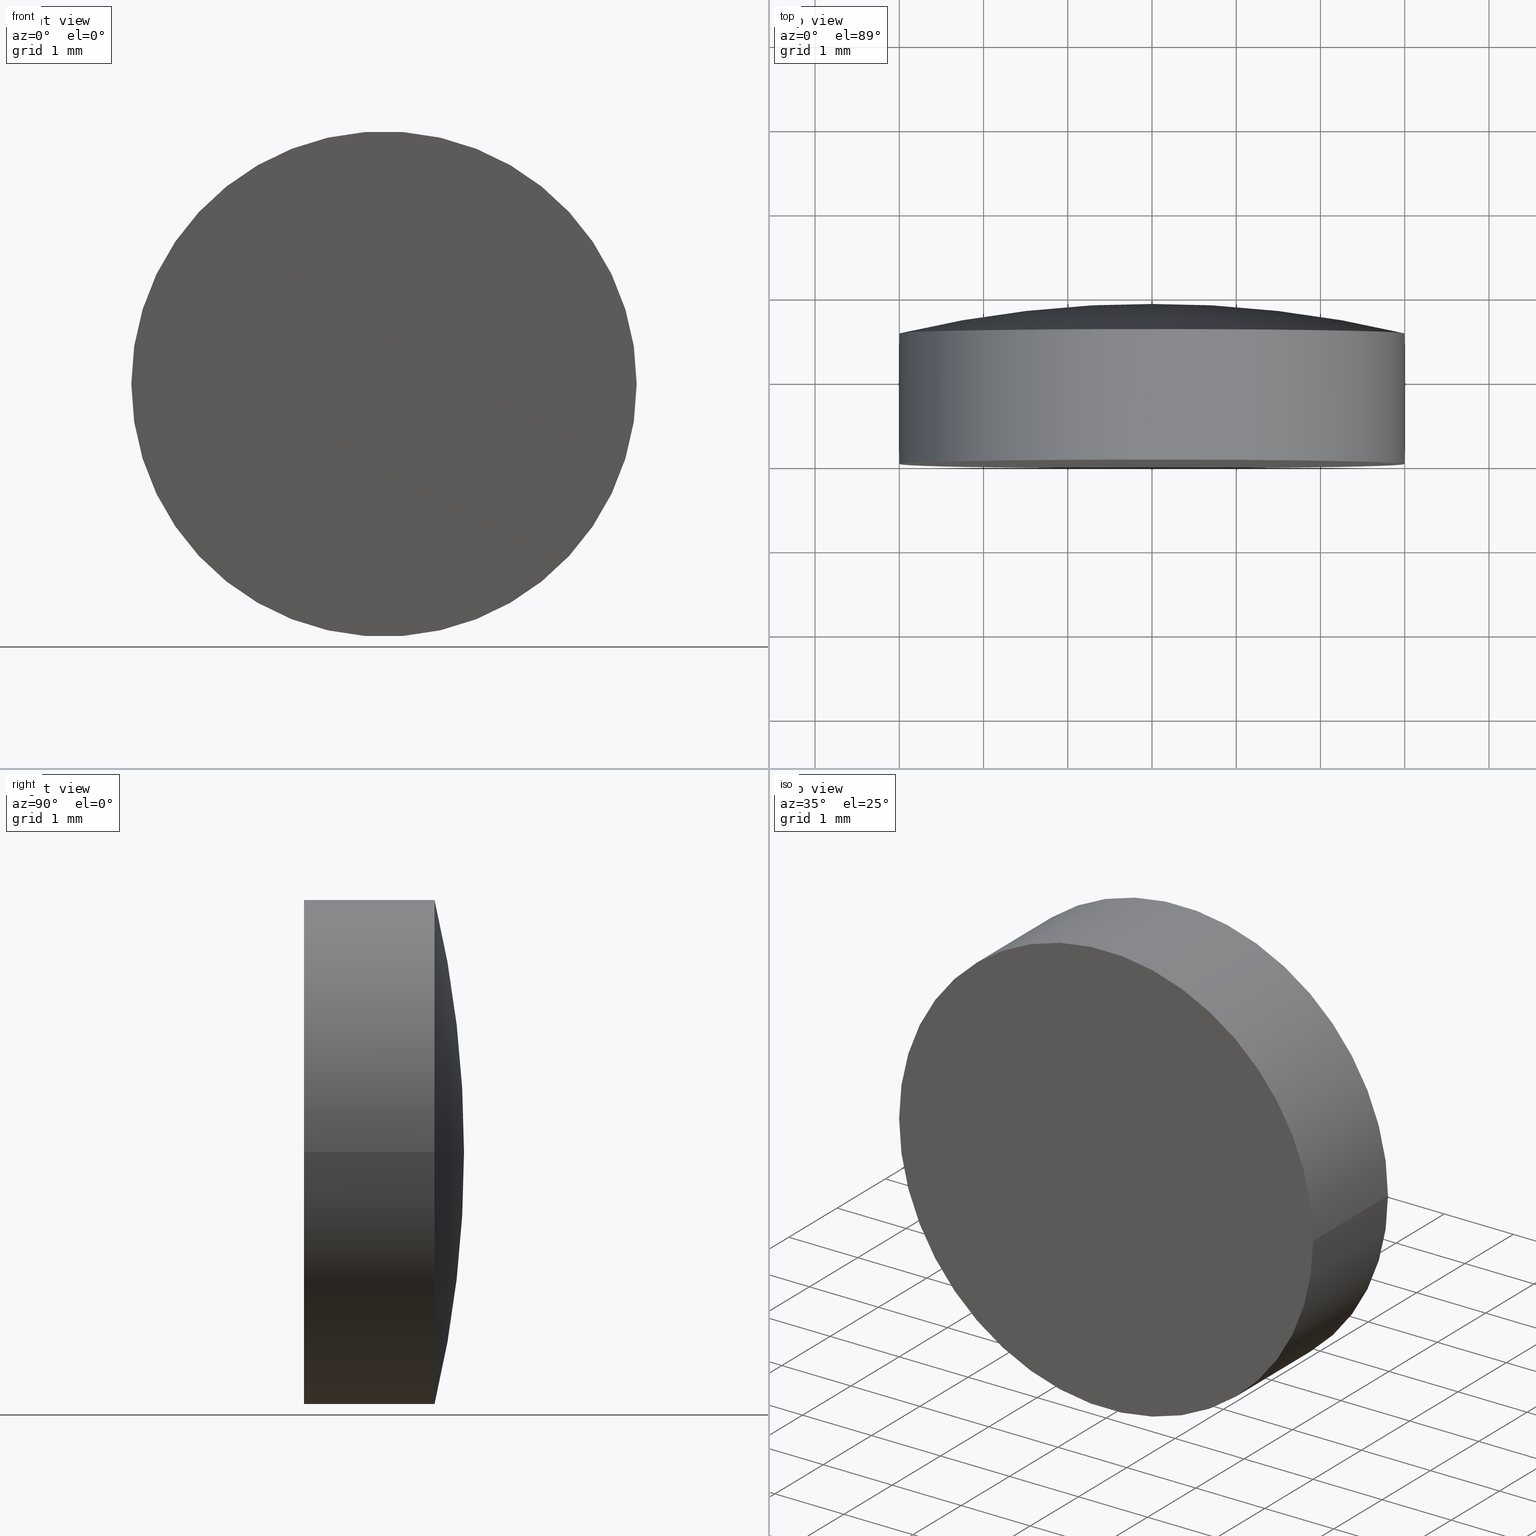
[diagram: canonical four-view strip — front | top / right | iso, engineering-drawing reading convention]
A machine part, canonical four-view strip (front | top / right | iso — engineering-drawing reading convention). The complete STEP part file that produces these views, byte-faithful:
ISO-10303-21;
HEADER;
FILE_DESCRIPTION (( 'STEP AP203' ),
    '1' );
FILE_NAME ('100564.STEP',
    '2024-05-09T06:10:14',
    ( '' ),
    ( '' ),
    'SwSTEP 2.0',
    'SolidWorks 2020',
    '' );
FILE_SCHEMA (( 'CONFIG_CONTROL_DESIGN' ));
ENDSEC;

DATA;
#1 = DIRECTION ( 'NONE',  ( -1.000000000000000000, 0.000000000000000000, 0.000000000000000000 ) ) ;
#2 = CARTESIAN_POINT ( 'NONE',  ( 1.224646799147351420E-17, 1.899999999999999911, 0.000000000000000000 ) ) ;
#3 = APPROVAL_PERSON_ORGANIZATION ( #56, #83, #115 ) ;
#4 = DIRECTION ( 'NONE',  ( -1.000000000000000000, 6.445509469196585650E-18, 0.000000000000000000 ) ) ;
#5 = CARTESIAN_POINT ( 'NONE',  ( 0.01425091764846829478, -11.00999213444168134, 1.745234068310931039E-18 ) ) ;
#6 = APPROVAL_ROLE ( '' ) ;
#7 = PERSON_AND_ORGANIZATION ( #136, #63 ) ;
#8 = PERSON_AND_ORGANIZATION_ROLE ( 'classification_officer' ) ;
#9 = CC_DESIGN_PERSON_AND_ORGANIZATION_ASSIGNMENT ( #97, #194, ( #49 ) ) ;
#10 = TOROIDAL_SURFACE ( 'NONE', #166, 0.01425091764846836591, 12.90999999999999837 ) ;
#11 = ORIENTED_EDGE ( 'NONE', *, *, #196, .T. ) ;
#12 = CALENDAR_DATE ( 2024, 9, 5 ) ;
#13 = DIRECTION ( 'NONE',  ( 6.445509469196587961E-18, 1.000000000000000000, -0.000000000000000000 ) ) ;
#14 = FACE_OUTER_BOUND ( 'NONE', #189, .T. ) ;
#15 = DATE_AND_TIME ( #129, #173 ) ;
#16 =( LENGTH_UNIT ( ) NAMED_UNIT ( * ) SI_UNIT ( .MILLI., .METRE. ) );
#17 = FACE_OUTER_BOUND ( 'NONE', #192, .T. ) ;
#18 = CC_DESIGN_PERSON_AND_ORGANIZATION_ASSIGNMENT ( #39, #55, ( #174 ) ) ;
#19 = AXIS2_PLACEMENT_3D ( 'NONE', #75, #120, #42 ) ;
#20 = CIRCLE ( 'NONE', #179, 12.90999999999999837 ) ;
#21 = ORIENTED_EDGE ( 'NONE', *, *, #196, .F. ) ;
#22 = EDGE_CURVE ( 'NONE', #118, #131, #201, .T. ) ;
#23 = CIRCLE ( 'NONE', #41, 3.000000000000000000 ) ;
#24 = SECURITY_CLASSIFICATION_LEVEL ( 'unclassified' ) ;
#25 = VECTOR ( 'NONE', #60, 1000.000000000000000 ) ;
#26 = DATE_TIME_ROLE ( 'creation_date' ) ;
#27 = DIRECTION ( 'NONE',  ( 6.445509469196587961E-18, 1.000000000000000000, -0.000000000000000000 ) ) ;
#28 = CC_DESIGN_DATE_AND_TIME_ASSIGNMENT ( #84, #135, ( #191 ) ) ;
#29 = CC_DESIGN_PERSON_AND_ORGANIZATION_ASSIGNMENT ( #37, #154, ( #59 ) ) ;
#30 = CARTESIAN_POINT ( 'NONE',  ( 3.000000000000000000, -4.530173974017915390E-16, 3.673940397442059868E-16 ) ) ;
#31 = DIRECTION ( 'NONE',  ( -1.000000000000000000, 6.445509469196585650E-18, 0.000000000000000000 ) ) ;
#32 = CIRCLE ( 'NONE', #138, 3.000000000000000000 ) ;
#33 = ORIENTED_EDGE ( 'NONE', *, *, #22, .T. ) ;
#34 = EDGE_CURVE ( 'NONE', #131, #38, #20, .T. ) ;
#35 = COORDINATED_UNIVERSAL_TIME_OFFSET ( 8, 0, .AHEAD. ) ;
#36 = CC_DESIGN_SECURITY_CLASSIFICATION ( #191, ( #174 ) ) ;
#37 = PERSON_AND_ORGANIZATION ( #136, #63 ) ;
#38 = VERTEX_POINT ( 'NONE', #2 ) ;
#39 = PERSON_AND_ORGANIZATION ( #136, #63 ) ;
#40 = EDGE_LOOP ( 'NONE', ( #107, #46, #142, #164 ) ) ;
#41 = AXIS2_PLACEMENT_3D ( 'NONE', #62, #171, #4 ) ;
#42 = DIRECTION ( 'NONE',  ( -1.000000000000000000, 0.000000000000000000, 0.000000000000000000 ) ) ;
#43 = ORIENTED_EDGE ( 'NONE', *, *, #72, .T. ) ;
#44 = AXIS2_PLACEMENT_3D ( 'NONE', #77, #141, #183 ) ;
#45 = CARTESIAN_POINT ( 'NONE',  ( -6.018531076210112041E-33, -4.336808689942017736E-16, 0.000000000000000000 ) ) ;
#46 = ORIENTED_EDGE ( 'NONE', *, *, #104, .T. ) ;
#47 = APPLICATION_PROTOCOL_DEFINITION ( 'international standard', 'config_control_design', 1994, #90 ) ;
#48 = ORIENTED_EDGE ( 'NONE', *, *, #104, .F. ) ;
#49 = PRODUCT_DEFINITION ( 'δ֪', '', #174, #126 ) ;
#50 = DATE_AND_TIME ( #176, #162 ) ;
#51 = ORIENTED_EDGE ( 'NONE', *, *, #188, .F. ) ;
#52 = CC_DESIGN_APPROVAL ( #83, ( #174 ) ) ;
#53 = APPROVAL_STATUS ( 'not_yet_approved' ) ;
#54 =( GEOMETRIC_REPRESENTATION_CONTEXT ( 3 ) GLOBAL_UNCERTAINTY_ASSIGNED_CONTEXT ( ( #152 ) ) GLOBAL_UNIT_ASSIGNED_CONTEXT ( ( #16, #110, #80 ) ) REPRESENTATION_CONTEXT ( 'NONE', 'WORKASPACE' ) );
#55 = PERSON_AND_ORGANIZATION_ROLE ( 'creator' ) ;
#56 = PERSON_AND_ORGANIZATION ( #136, #63 ) ;
#57 = ADVANCED_FACE ( 'NONE', ( #78 ), #10, .T. ) ;
#58 = AXIS2_PLACEMENT_3D ( 'NONE', #101, #159, #170 ) ;
#59 = PRODUCT ( '100564', '100564', '', ( #134 ) ) ;
#60 = DIRECTION ( 'NONE',  ( 6.445509469196587961E-18, 1.000000000000000000, -0.000000000000000000 ) ) ;
#61 = ORIENTED_EDGE ( 'NONE', *, *, #34, .F. ) ;
#62 = CARTESIAN_POINT ( 'NONE',  ( -6.018531076210112041E-33, -4.336808689942017736E-16, 0.000000000000000000 ) ) ;
#63 = ORGANIZATION ( 'δָ��', 'δָ��', '' ) ;
#64 = FACE_OUTER_BOUND ( 'NONE', #186, .T. ) ;
#65 = DIRECTION ( 'NONE',  ( -1.224646799147353207E-16, 7.893472540325556544E-34, 1.000000000000000000 ) ) ;
#66 = ADVANCED_FACE ( 'NONE', ( #181 ), #158, .T. ) ;
#67 = APPLICATION_CONTEXT ( 'configuration controlled 3d designs of mechanical parts and assemblies' ) ;
#68 = PERSON_AND_ORGANIZATION ( #136, #63 ) ;
#69 = APPROVAL_STATUS ( 'not_yet_approved' ) ;
#70 = CALENDAR_DATE ( 2024, 9, 5 ) ;
#71 = CC_DESIGN_APPROVAL ( #147, ( #49 ) ) ;
#72 = EDGE_CURVE ( 'NONE', #108, #131, #79, .T. ) ;
#73 = CARTESIAN_POINT ( 'NONE',  ( 0.000000000000000000, 0.000000000000000000, 0.000000000000000000 ) ) ;
#74 = DATE_AND_TIME ( #98, #184 ) ;
#75 = CARTESIAN_POINT ( 'NONE',  ( 9.990539677254705870E-18, 1.549999999999999600, 0.000000000000000000 ) ) ;
#76 = CIRCLE ( 'NONE', #58, 12.90999999999999837 ) ;
#77 = CARTESIAN_POINT ( 'NONE',  ( -1.246337769525088082E-33, -1.933652840758978761E-16, 0.000000000000000000 ) ) ;
#78 = FACE_OUTER_BOUND ( 'NONE', #193, .T. ) ;
#79 = CIRCLE ( 'NONE', #19, 3.000000000000000000 ) ;
#80 =( NAMED_UNIT ( * ) SI_UNIT ( $, .STERADIAN. ) SOLID_ANGLE_UNIT ( ) );
#81 = APPROVAL_DATE_TIME ( #132, #147 ) ;
#82 = ADVANCED_FACE ( 'NONE', ( #17 ), #121, .T. ) ;
#83 = APPROVAL ( #53, 'δָ��' ) ;
#84 = DATE_AND_TIME ( #70, #95 ) ;
#85 = CARTESIAN_POINT ( 'NONE',  ( -7.115076756936122848E-17, -11.00999213444168134, 0.000000000000000000 ) ) ;
#86 = CARTESIAN_POINT ( 'NONE',  ( -7.115076756936122848E-17, -11.00999213444168134, 0.000000000000000000 ) ) ;
#87 = DIRECTION ( 'NONE',  ( -1.000000000000000000, 0.000000000000000000, 0.000000000000000000 ) ) ;
#88 = CARTESIAN_POINT ( 'NONE',  ( -3.000000000000000000, -4.143443405866120082E-16, 0.000000000000000000 ) ) ;
#89 = VECTOR ( 'NONE', #156, 1000.000000000000000 ) ;
#90 = APPLICATION_CONTEXT ( 'configuration controlled 3d designs of mechanical parts and assemblies' ) ;
#91 = APPROVAL_PERSON_ORGANIZATION ( #199, #167, #6 ) ;
#92 = CLOSED_SHELL ( 'NONE', ( #127, #57, #82, #177, #66 ) ) ;
#93 = VERTEX_POINT ( 'NONE', #88 ) ;
#94 = ADVANCED_BREP_SHAPE_REPRESENTATION ( '100564', ( #137, #195 ), #54 ) ;
#95 = LOCAL_TIME ( 14, 10, 14.00000000000000000, #112 ) ;
#96 = COORDINATED_UNIVERSAL_TIME_OFFSET ( 8, 0, .AHEAD. ) ;
#97 = PERSON_AND_ORGANIZATION ( #136, #63 ) ;
#98 = CALENDAR_DATE ( 2024, 9, 5 ) ;
#99 = PERSON_AND_ORGANIZATION_ROLE ( 'design_supplier' ) ;
#100 = CARTESIAN_POINT ( 'NONE',  ( -3.000000000000004441, 1.549999999999999378, 0.000000000000000000 ) ) ;
#101 = CARTESIAN_POINT ( 'NONE',  ( -0.01425091764846843703, -11.00999213444168134, 0.000000000000000000 ) ) ;
#102 = LOCAL_TIME ( 14, 10, 14.00000000000000000, #198 ) ;
#103 = CARTESIAN_POINT ( 'NONE',  ( 9.990539677254705870E-18, 1.549999999999999600, 0.000000000000000000 ) ) ;
#104 = EDGE_CURVE ( 'NONE', #118, #93, #23, .T. ) ;
#105 = DIRECTION ( 'NONE',  ( -1.000000000000000000, 6.445509469196587191E-18, 0.000000000000000000 ) ) ;
#106 = CC_DESIGN_PERSON_AND_ORGANIZATION_ASSIGNMENT ( #114, #8, ( #191 ) ) ;
#107 = ORIENTED_EDGE ( 'NONE', *, *, #22, .F. ) ;
#108 = VERTEX_POINT ( 'NONE', #100 ) ;
#109 = AXIS2_PLACEMENT_3D ( 'NONE', #190, #117, #187 ) ;
#110 =( NAMED_UNIT ( * ) PLANE_ANGLE_UNIT ( ) SI_UNIT ( $, .RADIAN. ) );
#111 = ORIENTED_EDGE ( 'NONE', *, *, #34, .T. ) ;
#112 = COORDINATED_UNIVERSAL_TIME_OFFSET ( 8, 0, .AHEAD. ) ;
#113 = ORIENTED_EDGE ( 'NONE', *, *, #119, .F. ) ;
#114 = PERSON_AND_ORGANIZATION ( #136, #63 ) ;
#115 = APPROVAL_ROLE ( '' ) ;
#116 = PRODUCT_DEFINITION_SHAPE ( 'NONE', 'NONE',  #49 ) ;
#117 = DIRECTION ( 'NONE',  ( 6.445509469196587961E-18, 1.000000000000000000, -0.000000000000000000 ) ) ;
#118 = VERTEX_POINT ( 'NONE', #30 ) ;
#119 = EDGE_CURVE ( 'NONE', #93, #108, #161, .T. ) ;
#120 = DIRECTION ( 'NONE',  ( 6.445509469196587961E-18, 1.000000000000000000, -0.000000000000000000 ) ) ;
#121 = TOROIDAL_SURFACE ( 'NONE', #128, 0.01425091764846836591, 12.90999999999999837 ) ;
#122 = CYLINDRICAL_SURFACE ( 'NONE', #149, 3.000000000000000000 ) ;
#123 = DIRECTION ( 'NONE',  ( -1.000000000000000000, 6.445509469196587191E-18, 0.000000000000000000 ) ) ;
#124 = CC_DESIGN_APPROVAL ( #167, ( #191 ) ) ;
#125 = ORIENTED_EDGE ( 'NONE', *, *, #155, .T. ) ;
#126 = DESIGN_CONTEXT ( 'detailed design', #67, 'design' ) ;
#127 = ADVANCED_FACE ( 'NONE', ( #64 ), #122, .T. ) ;
#128 = AXIS2_PLACEMENT_3D ( 'NONE', #85, #144, #105 ) ;
#129 = CALENDAR_DATE ( 2024, 9, 5 ) ;
#130 = PRODUCT_RELATED_PRODUCT_CATEGORY ( 'detail', '', ( #59 ) ) ;
#131 = VERTEX_POINT ( 'NONE', #168 ) ;
#132 = DATE_AND_TIME ( #12, #102 ) ;
#133 = DIRECTION ( 'NONE',  ( 1.000000000000000000, 0.000000000000000000, 0.000000000000000000 ) ) ;
#134 = MECHANICAL_CONTEXT ( 'NONE', #90, 'mechanical' ) ;
#135 = DATE_TIME_ROLE ( 'classification_date' ) ;
#136 = PERSON ( 'δָ��', 'δָ��', 'δָ��', ('δָ��'), ('δָ��'), ('δָ��') ) ;
#137 = MANIFOLD_SOLID_BREP ( '��ת2', #92 ) ;
#138 = AXIS2_PLACEMENT_3D ( 'NONE', #103, #27, #87 ) ;
#139 = CARTESIAN_POINT ( 'NONE',  ( 1.224646799147351420E-17, 1.899999999999999911, 0.000000000000000000 ) ) ;
#140 = APPROVAL_DATE_TIME ( #15, #167 ) ;
#141 = DIRECTION ( 'NONE',  ( -6.445509469196587961E-18, -1.000000000000000000, 0.000000000000000000 ) ) ;
#142 = ORIENTED_EDGE ( 'NONE', *, *, #119, .T. ) ;
#143 = DIRECTION ( 'NONE',  ( 1.000000000000000000, 0.000000000000000000, 1.224646799147353207E-16 ) ) ;
#144 = DIRECTION ( 'NONE',  ( 6.445509469196587961E-18, 1.000000000000000000, -0.000000000000000000 ) ) ;
#145 = ORIENTED_EDGE ( 'NONE', *, *, #72, .F. ) ;
#146 = CIRCLE ( 'NONE', #163, 3.000000000000000000 ) ;
#147 = APPROVAL ( #69, 'δָ��' ) ;
#148 = CC_DESIGN_PERSON_AND_ORGANIZATION_ASSIGNMENT ( #68, #99, ( #174 ) ) ;
#149 = AXIS2_PLACEMENT_3D ( 'NONE', #139, #200, #1 ) ;
#150 = COORDINATED_UNIVERSAL_TIME_OFFSET ( 8, 0, .AHEAD. ) ;
#151 = APPLICATION_PROTOCOL_DEFINITION ( 'international standard', 'config_control_design', 1994, #67 ) ;
#152 = UNCERTAINTY_MEASURE_WITH_UNIT (LENGTH_MEASURE( 1.000000000000000082E-05 ), #16, 'distance_accuracy_value', 'NONE');
#153 = APPROVAL_ROLE ( '' ) ;
#154 = PERSON_AND_ORGANIZATION_ROLE ( 'design_owner' ) ;
#155 = EDGE_CURVE ( 'NONE', #131, #108, #32, .T. ) ;
#156 = DIRECTION ( 'NONE',  ( 6.445509469196587961E-18, 1.000000000000000000, -0.000000000000000000 ) ) ;
#157 = PLANE ( 'NONE',  #44 ) ;
#158 = CYLINDRICAL_SURFACE ( 'NONE', #109, 3.000000000000000000 ) ;
#159 = DIRECTION ( 'NONE',  ( -0.000000000000000000, 0.000000000000000000, -1.000000000000000000 ) ) ;
#160 = ORIENTED_EDGE ( 'NONE', *, *, #188, .T. ) ;
#161 = LINE ( 'NONE', #185, #89 ) ;
#162 = LOCAL_TIME ( 14, 10, 14.00000000000000000, #150 ) ;
#163 = AXIS2_PLACEMENT_3D ( 'NONE', #45, #172, #31 ) ;
#164 = ORIENTED_EDGE ( 'NONE', *, *, #155, .F. ) ;
#165 = CC_DESIGN_DATE_AND_TIME_ASSIGNMENT ( #74, #26, ( #49 ) ) ;
#166 = AXIS2_PLACEMENT_3D ( 'NONE', #86, #13, #123 ) ;
#167 = APPROVAL ( #175, 'δָ��' ) ;
#168 = CARTESIAN_POINT ( 'NONE',  ( 3.000000000000004441, 1.549999999999999378, 3.673940397442064798E-16 ) ) ;
#169 = APPROVAL_PERSON_ORGANIZATION ( #7, #147, #153 ) ;
#170 = DIRECTION ( 'NONE',  ( -1.000000000000000000, 0.000000000000000000, 0.000000000000000000 ) ) ;
#171 = DIRECTION ( 'NONE',  ( 6.445509469196587961E-18, 1.000000000000000000, -0.000000000000000000 ) ) ;
#172 = DIRECTION ( 'NONE',  ( 6.445509469196587961E-18, 1.000000000000000000, -0.000000000000000000 ) ) ;
#173 = LOCAL_TIME ( 14, 10, 14.00000000000000000, #35 ) ;
#174 = PRODUCT_DEFINITION_FORMATION_WITH_SPECIFIED_SOURCE ( '�κ�', '', #59, .NOT_KNOWN. ) ;
#175 = APPROVAL_STATUS ( 'not_yet_approved' ) ;
#176 = CALENDAR_DATE ( 2024, 9, 5 ) ;
#177 = ADVANCED_FACE ( 'NONE', ( #14 ), #157, .T. ) ;
#178 = APPROVAL_DATE_TIME ( #50, #83 ) ;
#179 = AXIS2_PLACEMENT_3D ( 'NONE', #5, #65, #143 ) ;
#180 = CARTESIAN_POINT ( 'NONE',  ( 3.000000000000000000, 1.899999999999999911, 3.673940397442059868E-16 ) ) ;
#181 = FACE_OUTER_BOUND ( 'NONE', #40, .T. ) ;
#182 = SHAPE_DEFINITION_REPRESENTATION ( #116, #94 ) ;
#183 = DIRECTION ( 'NONE',  ( 1.000000000000000000, -6.445509469196587961E-18, 0.000000000000000000 ) ) ;
#184 = LOCAL_TIME ( 14, 10, 14.00000000000000000, #96 ) ;
#185 = CARTESIAN_POINT ( 'NONE',  ( -3.000000000000000000, 1.899999999999999911, 0.000000000000000000 ) ) ;
#186 = EDGE_LOOP ( 'NONE', ( #11, #33, #145, #113 ) ) ;
#187 = DIRECTION ( 'NONE',  ( -1.000000000000000000, 0.000000000000000000, 0.000000000000000000 ) ) ;
#188 = EDGE_CURVE ( 'NONE', #108, #38, #76, .T. ) ;
#189 = EDGE_LOOP ( 'NONE', ( #21, #48 ) ) ;
#190 = CARTESIAN_POINT ( 'NONE',  ( 1.224646799147351420E-17, 1.899999999999999911, 0.000000000000000000 ) ) ;
#191 = SECURITY_CLASSIFICATION ( '', '', #24 ) ;
#192 = EDGE_LOOP ( 'NONE', ( #61, #125, #160 ) ) ;
#193 = EDGE_LOOP ( 'NONE', ( #43, #111, #51 ) ) ;
#194 = PERSON_AND_ORGANIZATION_ROLE ( 'creator' ) ;
#195 = AXIS2_PLACEMENT_3D ( 'NONE', #73, #197, #133 ) ;
#196 = EDGE_CURVE ( 'NONE', #93, #118, #146, .T. ) ;
#197 = DIRECTION ( 'NONE',  ( 0.000000000000000000, 0.000000000000000000, 1.000000000000000000 ) ) ;
#198 = COORDINATED_UNIVERSAL_TIME_OFFSET ( 8, 0, .AHEAD. ) ;
#199 = PERSON_AND_ORGANIZATION ( #136, #63 ) ;
#200 = DIRECTION ( 'NONE',  ( 6.445509469196587961E-18, 1.000000000000000000, -0.000000000000000000 ) ) ;
#201 = LINE ( 'NONE', #180, #25 ) ;
ENDSEC;
END-ISO-10303-21;
